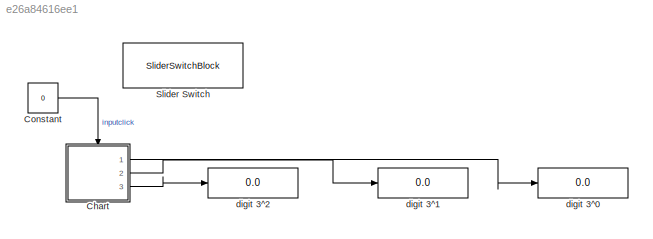
MODEL slx_e26a84616ee1
KIND model
CONFIG AbsTol = auto
CONFIG EnableMultiTasking = off
CONFIG FixedStep = auto
CONFIG MaxStep = auto
CONFIG MinStep = auto
CONFIG RelTol = 1e-3
CONFIG SampleTimeConstraint = Unconstrained
CONFIG SolverName = ode45
CONFIG StartTime = 0.0
CONFIG StopTime = inf
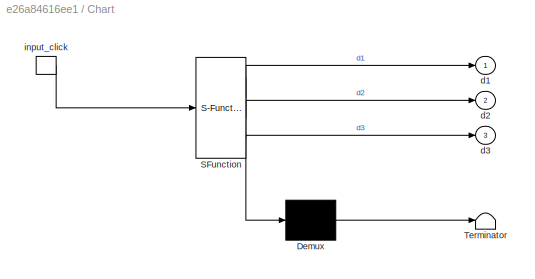
BLOCK [SubSystem] Chart
  ErrorFcn = Stateflow.Translate.translate
  PermitHierarchicalResolution = ExplicitOnly
  Ports = [0, 3, 0, 1]
  RequestExecContextInheritance = off
  SFBlockType = Chart
  TreatAsAtomicUnit = on
BLOCK [Demux] Chart/ Demux 
  Outputs = 1
  Ports = [1, 1]
BLOCK [S-Function] Chart/ SFunction 
  EnableBusSupport = on
  FunctionName = sf_sfun
  PortCounts = [1 4]
  Ports = [1, 4]
  SFcnIsStateOwnerBlock = off
  SFunctionDeploymentMode = off
  Tag = Stateflow S-Function 3
BLOCK [Terminator] Chart/ Terminator 
BLOCK [Outport] Chart/d1
BLOCK [Outport] Chart/d2
  Port = 2
BLOCK [Outport] Chart/d3
  Port = 3
BLOCK [TriggerPort] Chart/input_click
  Ports = [0, 1]
  ShowOutputPort = on
  StatesWhenEnabling = held
  TriggerType = either
  VariantControl = (inherit)
BLOCK [Constant] Constant
  Value = 0
BLOCK [SliderSwitchBlock] Slider Switch
  LabelPosition = Bottom
BLOCK [Display] digit 3^0
  Decimation = 1
  Ports = [1]
BLOCK [Display] digit 3^1
  Decimation = 1
  Ports = [1]
BLOCK [Display] digit 3^2
  Decimation = 1
  Ports = [1]
LINE Chart:1 -> digit 3^0:1
LINE Chart:2 -> digit 3^1:1
LINE Chart:3 -> digit 3^2:1
LINE Constant:1 -> Chart:trigger
CHART Chart states=18 transitions=18
  STATE_LABEL 'digit1'
  STATE_LABEL 'one\nen: d1 = 1;'
  STATE_LABEL 'two\nen: d1 = 2;'
  STATE_LABEL 'three\nen: d1 = 3;'
  STATE_LABEL 'zero\nen: d1 = 0;'
  STATE_LABEL 'four\nen: d1 = 4;'
  STATE_LABEL 'input_click'
  STATE_LABEL 'input_click'
  STATE_LABEL 'input_click'
  STATE_LABEL 'input_click'
  STATE_LABEL 'input_click/{digit2.inc2;}'
  STATE_LABEL 'one\nen: d1 = 1;'
  STATE_LABEL 'two\nen: d1 = 2;'
  STATE_LABEL 'three\nen: d1 = 3;'
  STATE_LABEL 'zero\nen: d1 = 0;'
  STATE_LABEL 'four\nen: d1 = 4;'
  STATE_LABEL 'digit2'
  STATE_LABEL 'one\nen: d2 = 1;'
  STATE_LABEL 'two\nen: d2 = 2;'
  STATE_LABEL 'three\nen: d2 = 3;'
  STATE_LABEL 'zero\nen:d2 = 0;'
  STATE_LABEL 'four\nen: d2 = 4;'
  STATE_LABEL 'inc2'
  STATE_LABEL 'inc2'
  STATE_LABEL 'inc2'
  STATE_LABEL 'inc2'
  STATE_LABEL 'inc2/{digit3.inc3;}'
  STATE_LABEL 'one\nen: d2 = 1;'
  STATE_LABEL 'two\nen: d2 = 2;'
  STATE_LABEL 'three\nen: d2 = 3;'
  STATE_LABEL 'zero\nen:d2 = 0;'
  STATE_LABEL 'four\nen: d2 = 4;'
  STATE_LABEL 'digit3'
  STATE_LABEL 'one\nen: d3 = 1;'
  STATE_LABEL 'two\nen: d3 = 2;'
  STATE_LABEL 'three\nen: d3 = 3;'
  STATE_LABEL 'zero\nen:d3 = 0;'
  STATE_LABEL 'four\nen: d3 = 4;'
  STATE_LABEL 'inc3'
  STATE_LABEL 'inc3'
CHART  states=0 transitions=0
